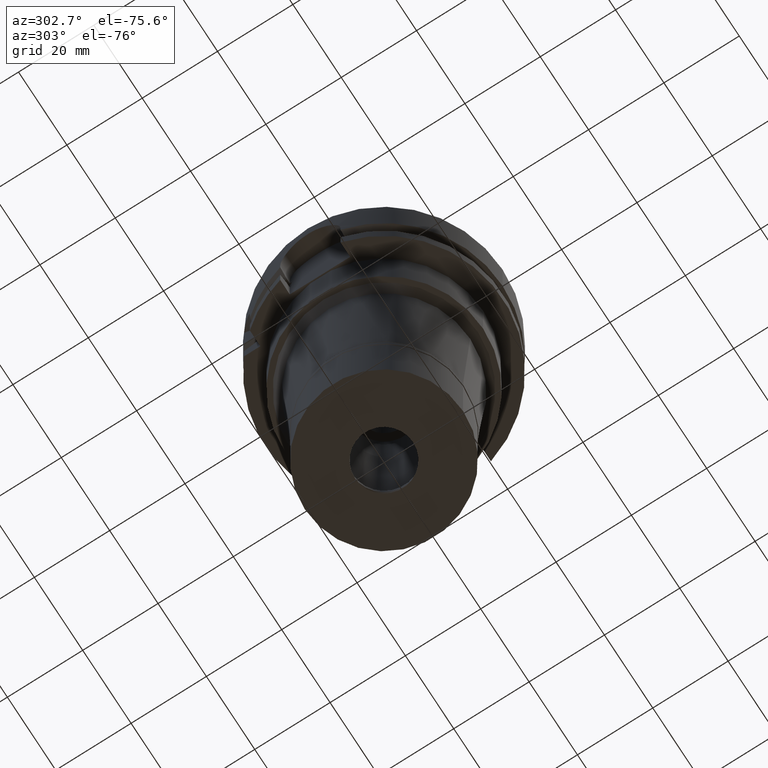
[diagram: clean part render]
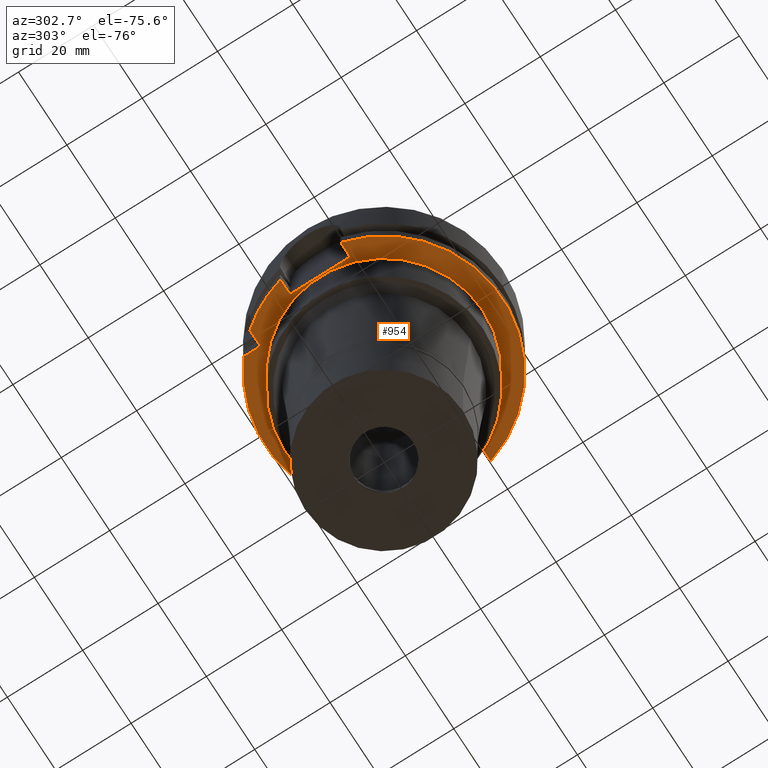
[diagram: same view with one face highlighted and labeled with its STEP entity id]
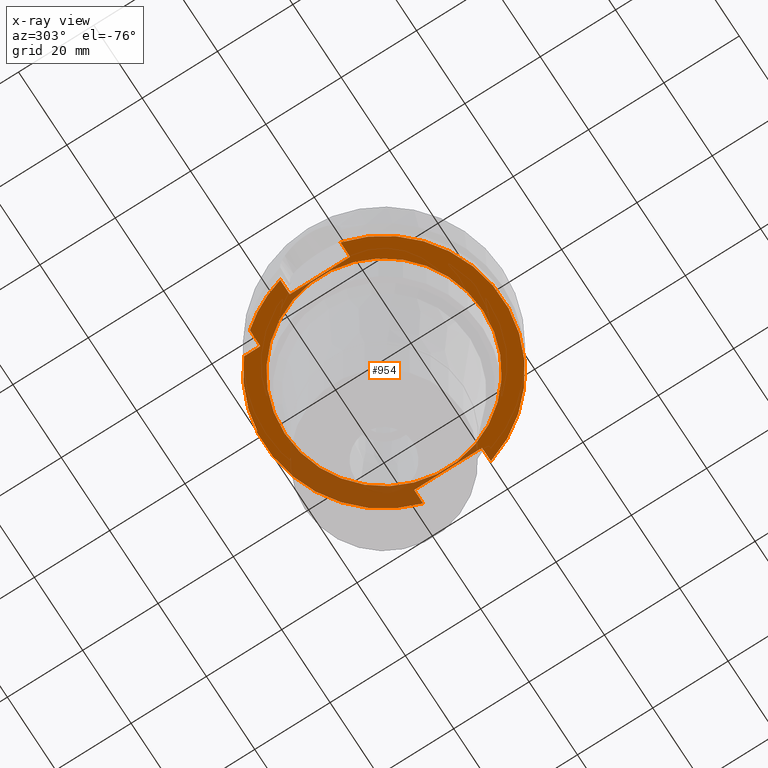
[diagram: x-ray of the same camera — body ghosted, the highlighted face saturated]
A machine part, auxiliary view. The second image highlights one B-rep face of the part: STEP entity #954.
The next image is the same camera in x-ray: the body ghosted, the highlighted face saturated — about 22% of this face is hidden behind the body in this view.
In plain terms, the highlighted planar face has unit normal (0, 0, 1).
Its self-contained STEP definition (entity closure, byte-faithful):
#130 = DIRECTION ( 'NONE',  ( -0.7725773665802099233, 0.6349206349206079070, 0.0000000000000000000 ) ) ;
#150 = EDGE_CURVE ( 'NONE', #3312, #568, #1439, .T. ) ;
#189 = CARTESIAN_POINT ( 'NONE',  ( -20.00000000000000000, 20.00000000000000000, -26.00000000000000000 ) ) ;
#203 = CARTESIAN_POINT ( 'NONE',  ( -26.50000000000000000, -8.000000000000000000, -26.00000000000000000 ) ) ;
#235 = VERTEX_POINT ( 'NONE', #4021 ) ;
#237 = CARTESIAN_POINT ( 'NONE',  ( 30.18691769625000276, -9.000000000000000000, -26.00000000000000000 ) ) ;
#240 = VERTEX_POINT ( 'NONE', #237 ) ;
#270 = VERTEX_POINT ( 'NONE', #581 ) ;
#318 = ORIENTED_EDGE ( 'NONE', *, *, #3669, .F. ) ;
#338 = ORIENTED_EDGE ( 'NONE', *, *, #1169, .F. ) ;
#381 = VERTEX_POINT ( 'NONE', #2986 ) ;
#533 = LINE ( 'NONE', #2967, #3032 ) ;
#568 = VERTEX_POINT ( 'NONE', #3810 ) ;
#581 = CARTESIAN_POINT ( 'NONE',  ( 0.0000000000000000000, 26.30000000000000071, -26.00000000000000000 ) ) ;
#670 = VERTEX_POINT ( 'NONE', #1393 ) ;
#707 = CARTESIAN_POINT ( 'NONE',  ( 0.0000000000000000000, 0.0000000000000000000, -26.00000000000000000 ) ) ;
#726 = DIRECTION ( 'NONE',  ( 1.000000000000000000, 0.0000000000000000000, 0.0000000000000000000 ) ) ;
#867 = AXIS2_PLACEMENT_3D ( 'NONE', #4469, #4913, #726 ) ;
#954 = ADVANCED_FACE ( 'NONE', ( #3165, #1953 ), #4037, .F. ) ;
#1134 = CARTESIAN_POINT ( 'NONE',  ( -26.50000000000000000, 8.000000000000000000, -26.00000000000000000 ) ) ;
#1145 = VERTEX_POINT ( 'NONE', #1731 ) ;
#1169 = EDGE_CURVE ( 'NONE', #270, #1145, #5031, .T. ) ;
#1209 = DIRECTION ( 'NONE',  ( 1.556703139445999911E-13, 1.000000000000000000, 0.0000000000000000000 ) ) ;
#1229 = AXIS2_PLACEMENT_3D ( 'NONE', #3717, #1858, #3852 ) ;
#1241 = LINE ( 'NONE', #4194, #1761 ) ;
#1316 = EDGE_CURVE ( 'NONE', #235, #240, #2282, .T. ) ;
#1389 = DIRECTION ( 'NONE',  ( 0.0000000000000000000, 1.000000000000000000, 0.0000000000000000000 ) ) ;
#1393 = CARTESIAN_POINT ( 'NONE',  ( -30.46719547316000032, -8.000000000000000000, -26.00000000000000000 ) ) ;
#1439 = LINE ( 'NONE', #189, #2145 ) ;
#1447 = VERTEX_POINT ( 'NONE', #4377 ) ;
#1499 = ORIENTED_EDGE ( 'NONE', *, *, #150, .F. ) ;
#1507 = EDGE_CURVE ( 'NONE', #568, #1447, #5389, .T. ) ;
#1551 = DIRECTION ( 'NONE',  ( 1.000000000000000000, -7.275179563199999529E-14, 0.0000000000000000000 ) ) ;
#1680 = VECTOR ( 'NONE', #3959, 1000.000000000000000 ) ;
#1715 = EDGE_CURVE ( 'NONE', #2212, #1447, #1241, .T. ) ;
#1731 = CARTESIAN_POINT ( 'NONE',  ( 0.0000000000000000000, -26.30000000000000071, -26.00000000000000000 ) ) ;
#1761 = VECTOR ( 'NONE', #3289, 1000.000000000000000 ) ;
#1800 = CIRCLE ( 'NONE', #2421, 31.50000000000000000 ) ;
#1858 = DIRECTION ( 'NONE',  ( 0.0000000000000000000, 0.0000000000000000000, -1.000000000000000000 ) ) ;
#1885 = DIRECTION ( 'NONE',  ( -1.000000000000000000, -1.540316790609000194E-13, 0.0000000000000000000 ) ) ;
#1918 = DIRECTION ( 'NONE',  ( 0.0000000000000000000, -1.000000000000000000, 0.0000000000000000000 ) ) ;
#1925 = EDGE_CURVE ( 'NONE', #4883, #2212, #4444, .T. ) ;
#1953 = FACE_BOUND ( 'NONE', #2130, .T. ) ;
#1994 = DIRECTION ( 'NONE',  ( 0.0000000000000000000, 0.0000000000000000000, 1.000000000000000000 ) ) ;
#2020 = CARTESIAN_POINT ( 'NONE',  ( 30.18691769625000276, 9.000000000000000000, -26.00000000000000000 ) ) ;
#2056 = CIRCLE ( 'NONE', #3553, 26.30000000000000071 ) ;
#2078 = LINE ( 'NONE', #5007, #3116 ) ;
#2130 = EDGE_LOOP ( 'NONE', ( #338, #318 ) ) ;
#2145 = VECTOR ( 'NONE', #1885, 1000.000000000000000 ) ;
#2212 = VERTEX_POINT ( 'NONE', #1134 ) ;
#2282 = LINE ( 'NONE', #3947, #2642 ) ;
#2356 = ORIENTED_EDGE ( 'NONE', *, *, #3474, .T. ) ;
#2413 = CIRCLE ( 'NONE', #4889, 31.50000000000000000 ) ;
#2421 = AXIS2_PLACEMENT_3D ( 'NONE', #707, #1994, #2439 ) ;
#2438 = ORIENTED_EDGE ( 'NONE', *, *, #1715, .T. ) ;
#2439 = DIRECTION ( 'NONE',  ( 0.0000000000000000000, 1.000000000000000000, 0.0000000000000000000 ) ) ;
#2472 = AXIS2_PLACEMENT_3D ( 'NONE', #5216, #4738, #130 ) ;
#2564 = DIRECTION ( 'NONE',  ( 0.0000000000000000000, 0.0000000000000000000, -1.000000000000000000 ) ) ;
#2587 = DIRECTION ( 'NONE',  ( -1.000000000000000000, -8.686570378870999660E-14, 0.0000000000000000000 ) ) ;
#2642 = VECTOR ( 'NONE', #3517, 1000.000000000000000 ) ;
#2723 = CARTESIAN_POINT ( 'NONE',  ( 0.0000000000000000000, 0.0000000000000000000, -26.00000000000000000 ) ) ;
#2798 = LINE ( 'NONE', #4909, #5319 ) ;
#2889 = ORIENTED_EDGE ( 'NONE', *, *, #2925, .F. ) ;
#2893 = EDGE_CURVE ( 'NONE', #235, #3351, #4031, .T. ) ;
#2923 = ORIENTED_EDGE ( 'NONE', *, *, #3993, .F. ) ;
#2925 = EDGE_CURVE ( 'NONE', #3351, #4759, #2798, .T. ) ;
#2967 = CARTESIAN_POINT ( 'NONE',  ( -26.50000000000000000, -8.000000000000000000, -26.00000000000000000 ) ) ;
#2986 = CARTESIAN_POINT ( 'NONE',  ( -20.00000000000000000, 24.33618704727999926, -26.00000000000000000 ) ) ;
#3032 = VECTOR ( 'NONE', #2587, 1000.000000000000000 ) ;
#3116 = VECTOR ( 'NONE', #1209, 1000.000000000000000 ) ;
#3149 = ORIENTED_EDGE ( 'NONE', *, *, #2893, .F. ) ;
#3165 = FACE_OUTER_BOUND ( 'NONE', #3653, .T. ) ;
#3183 = VECTOR ( 'NONE', #1389, 1000.000000000000000 ) ;
#3255 = CARTESIAN_POINT ( 'NONE',  ( 26.50000000000000000, 9.000000000000000000, -26.00000000000000000 ) ) ;
#3289 = DIRECTION ( 'NONE',  ( -1.000000000000000000, 8.776122650817999518E-14, 0.0000000000000000000 ) ) ;
#3312 = VERTEX_POINT ( 'NONE', #4445 ) ;
#3351 = VERTEX_POINT ( 'NONE', #3255 ) ;
#3431 = ORIENTED_EDGE ( 'NONE', *, *, #1316, .T. ) ;
#3474 = EDGE_CURVE ( 'NONE', #3312, #381, #2078, .T. ) ;
#3517 = DIRECTION ( 'NONE',  ( 1.000000000000000000, 6.889739586341000002E-14, 0.0000000000000000000 ) ) ;
#3553 = AXIS2_PLACEMENT_3D ( 'NONE', #4778, #2564, #5120 ) ;
#3653 = EDGE_LOOP ( 'NONE', ( #4225, #2889, #3149, #3431, #4788, #2923, #3995, #2438, #4638, #1499, #2356 ) ) ;
#3669 = EDGE_CURVE ( 'NONE', #1145, #270, #2056, .T. ) ;
#3717 = CARTESIAN_POINT ( 'NONE',  ( 0.0000000000000000000, 0.0000000000000000000, -26.00000000000000000 ) ) ;
#3810 = CARTESIAN_POINT ( 'NONE',  ( -24.33618704727999926, 20.00000000000000000, -26.00000000000000000 ) ) ;
#3852 = DIRECTION ( 'NONE',  ( 0.0000000000000000000, 1.000000000000000000, 0.0000000000000000000 ) ) ;
#3947 = CARTESIAN_POINT ( 'NONE',  ( 26.50000000000000000, -9.000000000000000000, -26.00000000000000000 ) ) ;
#3959 = DIRECTION ( 'NONE',  ( 0.0000000000000000000, 1.000000000000000000, 0.0000000000000000000 ) ) ;
#3993 = EDGE_CURVE ( 'NONE', #4883, #670, #533, .T. ) ;
#3995 = ORIENTED_EDGE ( 'NONE', *, *, #1925, .T. ) ;
#4021 = CARTESIAN_POINT ( 'NONE',  ( 26.50000000000000000, -9.000000000000000000, -26.00000000000000000 ) ) ;
#4031 = LINE ( 'NONE', #5198, #3183 ) ;
#4037 = PLANE ( 'NONE',  #867 ) ;
#4162 = CARTESIAN_POINT ( 'NONE',  ( -26.50000000000000000, -8.000000000000000000, -26.00000000000000000 ) ) ;
#4194 = CARTESIAN_POINT ( 'NONE',  ( -26.50000000000000000, 8.000000000000000000, -26.00000000000000000 ) ) ;
#4208 = EDGE_CURVE ( 'NONE', #670, #240, #2413, .T. ) ;
#4225 = ORIENTED_EDGE ( 'NONE', *, *, #4687, .F. ) ;
#4377 = CARTESIAN_POINT ( 'NONE',  ( -30.46719547316000032, 8.000000000000000000, -26.00000000000000000 ) ) ;
#4444 = LINE ( 'NONE', #203, #1680 ) ;
#4445 = CARTESIAN_POINT ( 'NONE',  ( -20.00000000000000000, 20.00000000000000000, -26.00000000000000000 ) ) ;
#4469 = CARTESIAN_POINT ( 'NONE',  ( 0.0000000000000000000, 0.0000000000000000000, -26.00000000000000000 ) ) ;
#4638 = ORIENTED_EDGE ( 'NONE', *, *, #1507, .F. ) ;
#4687 = EDGE_CURVE ( 'NONE', #4759, #381, #1800, .T. ) ;
#4738 = DIRECTION ( 'NONE',  ( 0.0000000000000000000, 0.0000000000000000000, 1.000000000000000000 ) ) ;
#4759 = VERTEX_POINT ( 'NONE', #2020 ) ;
#4778 = CARTESIAN_POINT ( 'NONE',  ( 0.0000000000000000000, 0.0000000000000000000, -26.00000000000000000 ) ) ;
#4788 = ORIENTED_EDGE ( 'NONE', *, *, #4208, .F. ) ;
#4883 = VERTEX_POINT ( 'NONE', #4162 ) ;
#4889 = AXIS2_PLACEMENT_3D ( 'NONE', #2723, #5329, #1918 ) ;
#4909 = CARTESIAN_POINT ( 'NONE',  ( 26.50000000000000000, 9.000000000000000000, -26.00000000000000000 ) ) ;
#4913 = DIRECTION ( 'NONE',  ( 0.0000000000000000000, 0.0000000000000000000, 1.000000000000000000 ) ) ;
#5007 = CARTESIAN_POINT ( 'NONE',  ( -20.00000000000000000, 20.00000000000000000, -26.00000000000000000 ) ) ;
#5031 = CIRCLE ( 'NONE', #1229, 26.30000000000000071 ) ;
#5120 = DIRECTION ( 'NONE',  ( 0.0000000000000000000, -1.000000000000000000, 0.0000000000000000000 ) ) ;
#5198 = CARTESIAN_POINT ( 'NONE',  ( 26.50000000000000000, -9.000000000000000000, -26.00000000000000000 ) ) ;
#5216 = CARTESIAN_POINT ( 'NONE',  ( 0.0000000000000000000, 0.0000000000000000000, -26.00000000000000000 ) ) ;
#5319 = VECTOR ( 'NONE', #1551, 1000.000000000000000 ) ;
#5329 = DIRECTION ( 'NONE',  ( 0.0000000000000000000, 0.0000000000000000000, 1.000000000000000000 ) ) ;
#5389 = CIRCLE ( 'NONE', #2472, 31.50000000000000711 ) ;